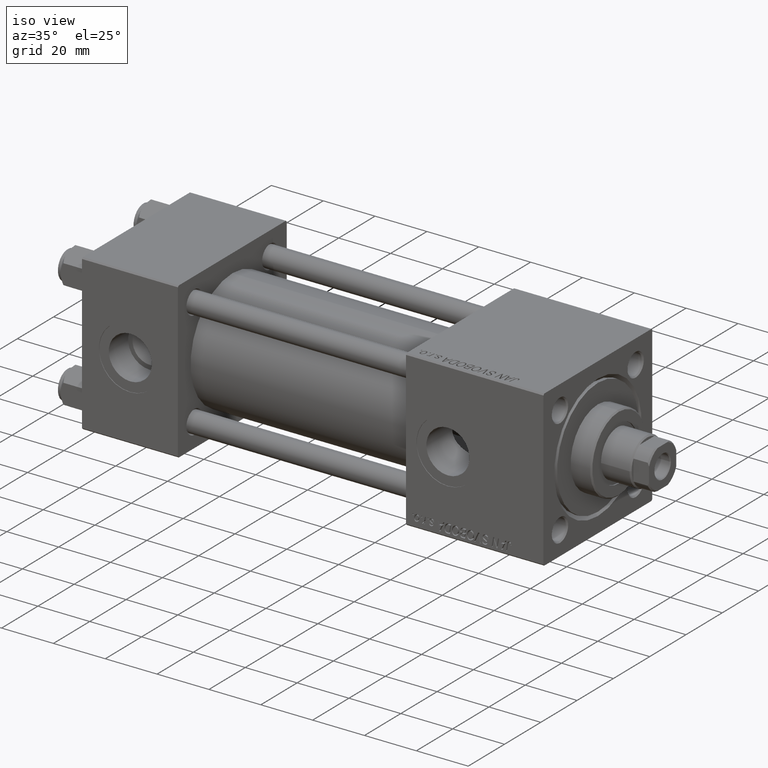
[diagram: clean part render]
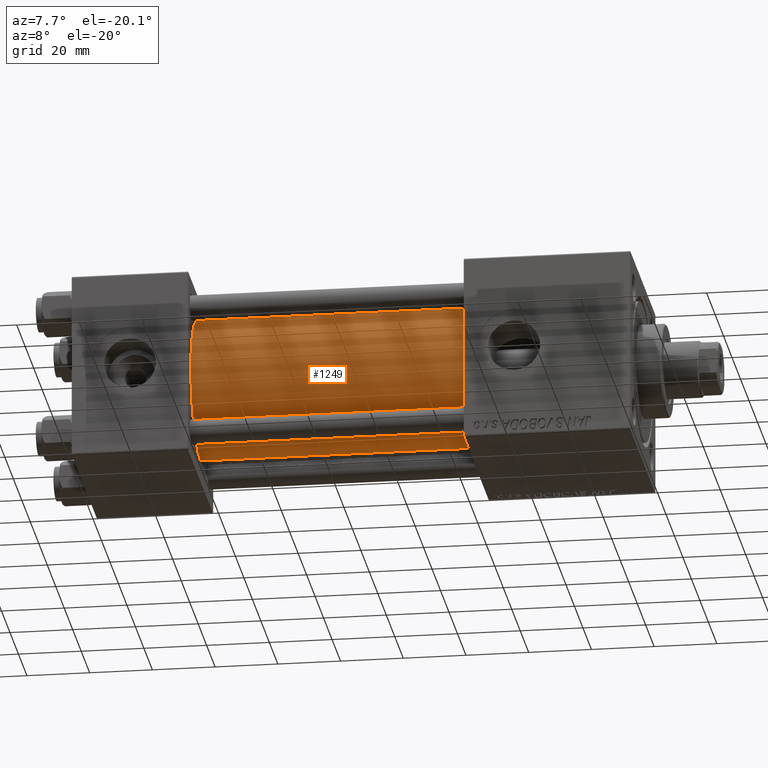
[diagram: tour spotlight — one face highlighted and labeled with its STEP entity id]
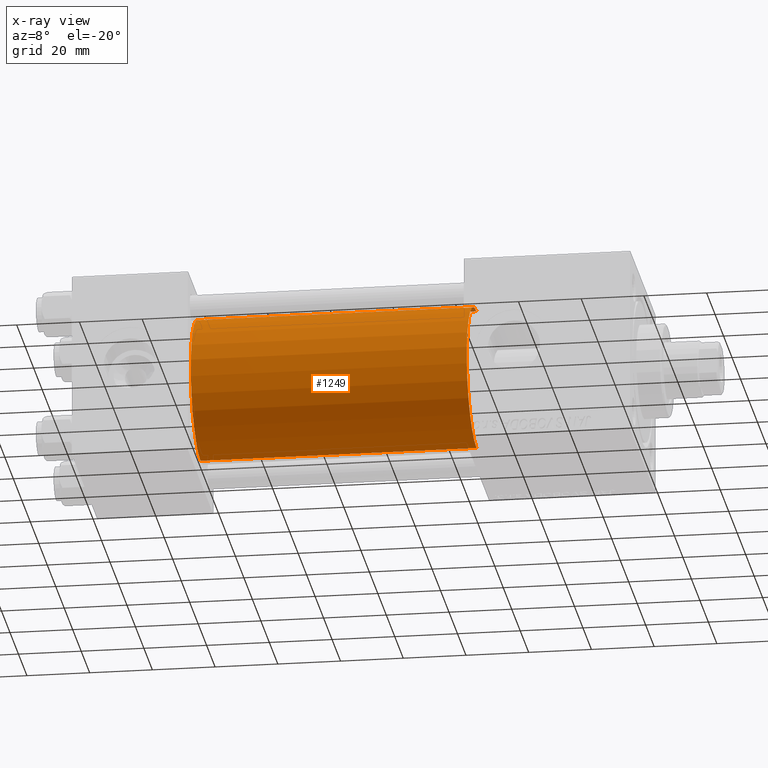
[diagram: x-ray of the same camera — body ghosted, this tour face saturated]
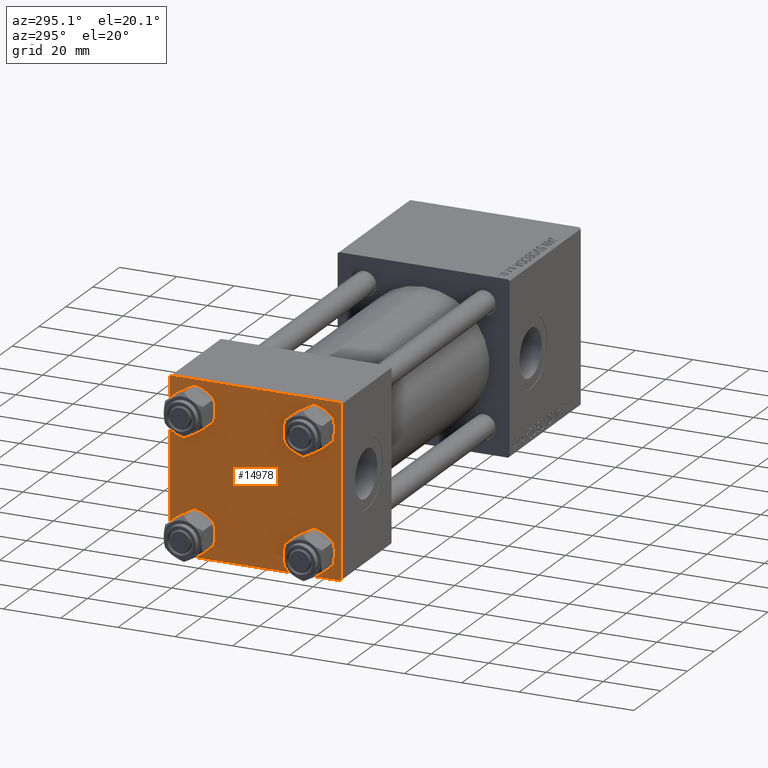
[diagram: tour spotlight — one face highlighted and labeled with its STEP entity id]
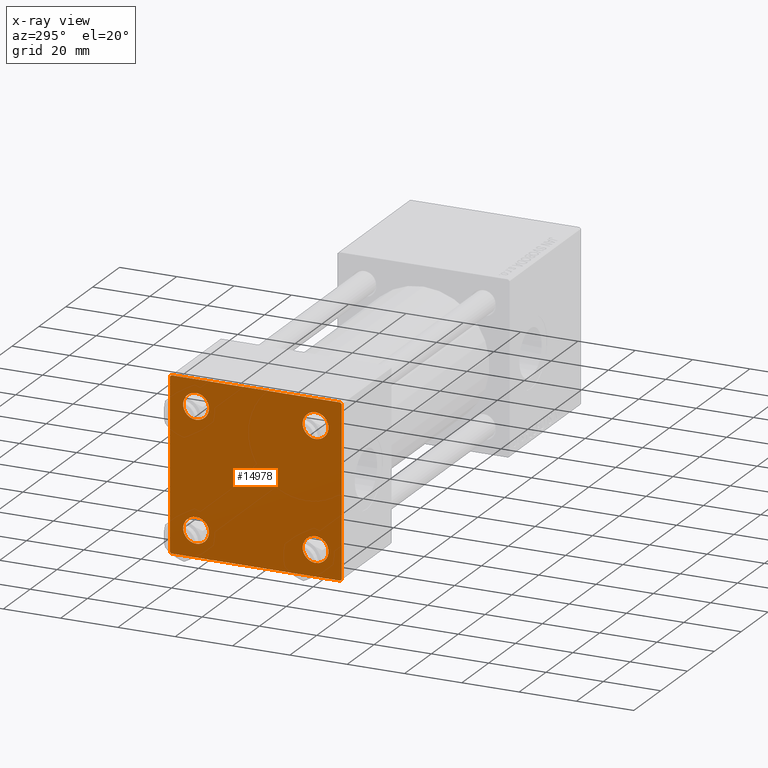
[diagram: x-ray of the same camera — body ghosted, this tour face saturated]
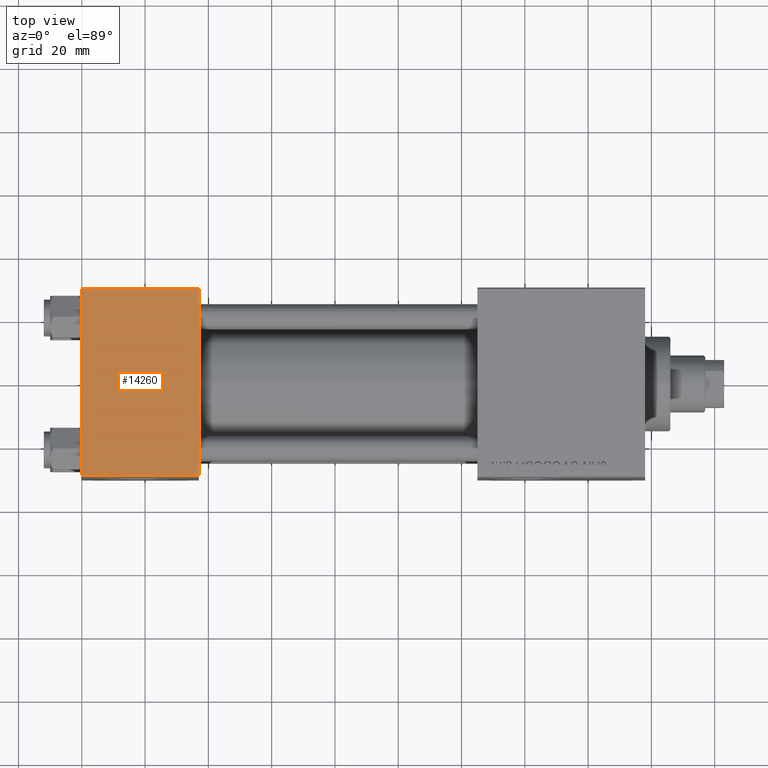
[diagram: tour spotlight — one face highlighted and labeled with its STEP entity id]
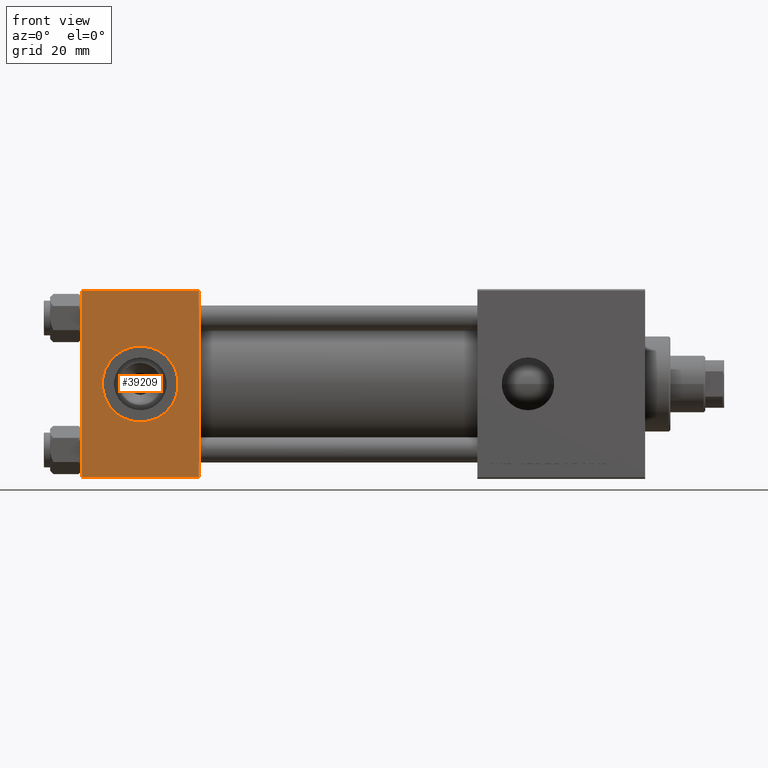
[diagram: tour spotlight — one face highlighted and labeled with its STEP entity id]
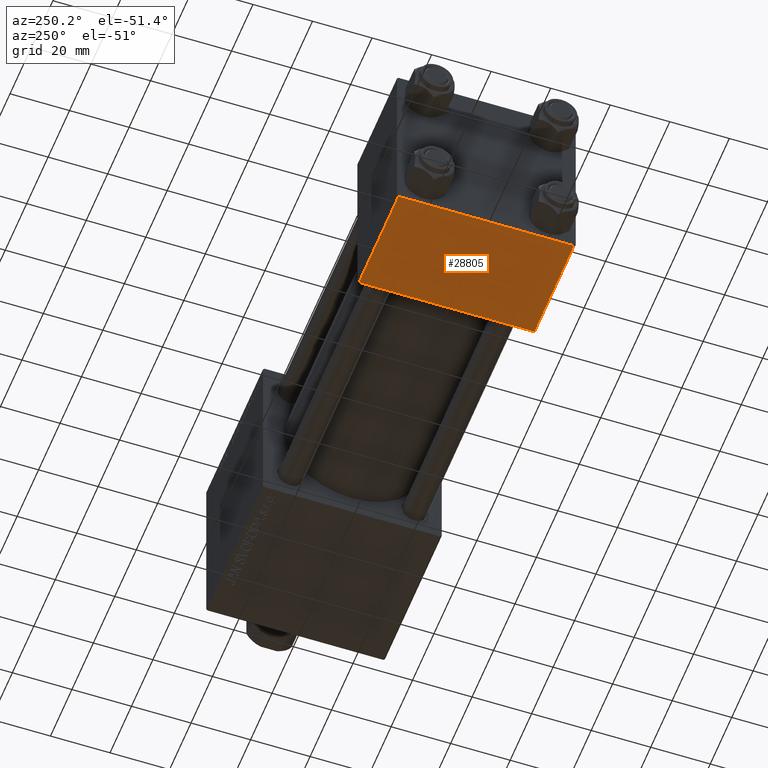
[diagram: tour spotlight — one face highlighted and labeled with its STEP entity id]
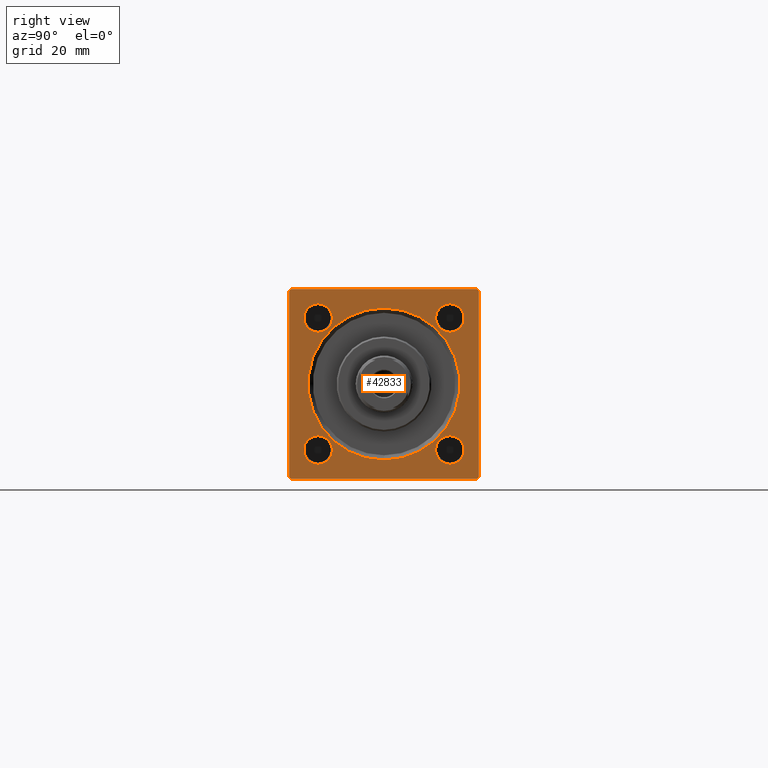
[diagram: tour spotlight — one face highlighted and labeled with its STEP entity id]
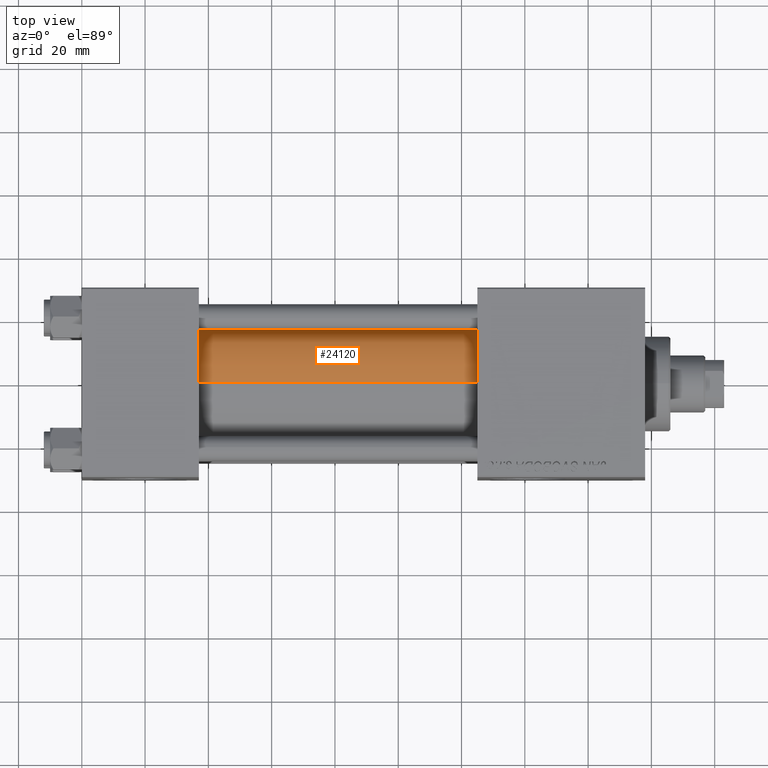
[diagram: tour spotlight — one face highlighted and labeled with its STEP entity id]
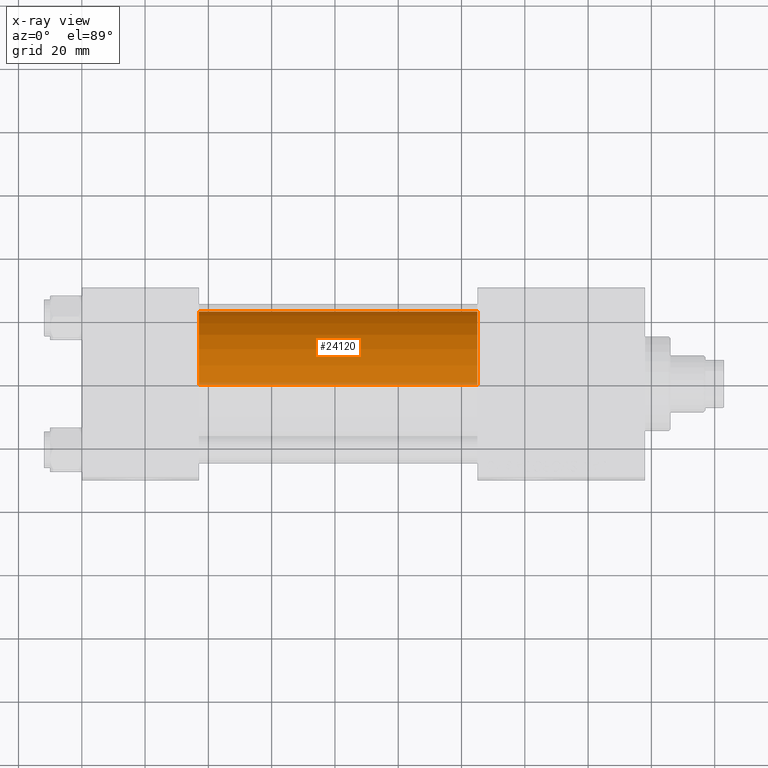
[diagram: x-ray of the same camera — body ghosted, this tour face saturated]
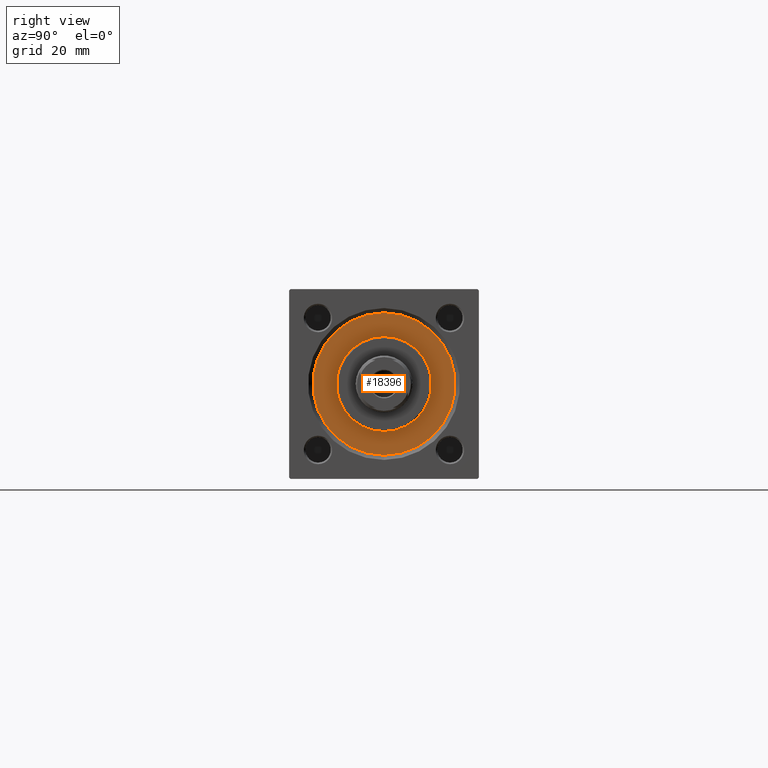
[diagram: tour spotlight — one face highlighted and labeled with its STEP entity id]
A machine part: a face-by-face anatomy tour. The part has 1149 B-rep faces; the first image is the clean iso view, then the 8 largest visible faces are spotlighted one at a time (largest first), each with its STEP entity span.

Face 1 — auxiliary view, entity #1249. An x-ray twin of the same camera follows (body ghosted, this face saturated) — the face is partly hidden behind the body. In plain terms, the highlighted cylindrical surface (partial cylindrical patch) has radius 23 mm, axis along (-1, -0, -0).
Definition (entity closure, byte-faithful):
#145 = DIRECTION ( 'NONE',  ( 0.000000000000000000, 0.000000000000000000, -1.000000000000000000 ) ) ;
#1249 = ADVANCED_FACE ( 'NONE', ( #13516 ), #48798, .T. ) ;
#2422 = ORIENTED_EDGE ( 'NONE', *, *, #13781, .F. ) ;
#4554 = CARTESIAN_POINT ( 'NONE',  ( 125.0000000000000000, -2.602085213965210642E-15, 23.00000000000000000 ) ) ;
#4766 = LINE ( 'NONE', #35991, #48747 ) ;
#5889 = DIRECTION ( 'NONE',  ( -1.000000000000000000, -0.000000000000000000, -0.000000000000000000 ) ) ;
#5941 = VERTEX_POINT ( 'NONE', #10081 ) ;
#7221 = CIRCLE ( 'NONE', #42881, 23.00000000000000000 ) ;
#7527 = ORIENTED_EDGE ( 'NONE', *, *, #40913, .T. ) ;
#7709 = LINE ( 'NONE', #15839, #38922 ) ;
#10081 = CARTESIAN_POINT ( 'NONE',  ( 37.00000000000000711, -2.602085213965210642E-15, 23.00000000000000000 ) ) ;
#12972 = AXIS2_PLACEMENT_3D ( 'NONE', #28986, #5889, #22378 ) ;
#13516 = FACE_OUTER_BOUND ( 'NONE', #47147, .T. ) ;
#13781 = EDGE_CURVE ( 'NONE', #39479, #43272, #7221, .T. ) ;
#14473 = ORIENTED_EDGE ( 'NONE', *, *, #18175, .F. ) ;
#15839 = CARTESIAN_POINT ( 'NONE',  ( 125.0000000000000000, 2.146024240737016609E-16, -23.00000000000000000 ) ) ;
#18158 = CARTESIAN_POINT ( 'NONE',  ( 37.00000000000000711, -2.602085213965210642E-15, 0.000000000000000000 ) ) ;
#18175 = EDGE_CURVE ( 'NONE', #43272, #39946, #7709, .T. ) ;
#19458 = DIRECTION ( 'NONE',  ( 1.000000000000000000, 0.000000000000000000, 0.000000000000000000 ) ) ;
#20085 = EDGE_CURVE ( 'NONE', #39479, #5941, #4766, .T. ) ;
#22378 = DIRECTION ( 'NONE',  ( 0.000000000000000000, 0.000000000000000000, 1.000000000000000000 ) ) ;
#26512 = DIRECTION ( 'NONE',  ( 0.000000000000000000, 0.000000000000000000, 1.000000000000000000 ) ) ;
#28689 = ORIENTED_EDGE ( 'NONE', *, *, #20085, .T. ) ;
#28986 = CARTESIAN_POINT ( 'NONE',  ( 125.0000000000000000, -2.602085213965210642E-15, 0.000000000000000000 ) ) ;
#30524 = CIRCLE ( 'NONE', #42678, 23.00000000000000000 ) ;
#34663 = CARTESIAN_POINT ( 'NONE',  ( 125.0000000000000000, -2.602085213965210642E-15, 0.000000000000000000 ) ) ;
#35991 = CARTESIAN_POINT ( 'NONE',  ( 125.0000000000000000, -2.602085213965210642E-15, 23.00000000000000000 ) ) ;
#37681 = DIRECTION ( 'NONE',  ( 1.000000000000000000, -0.000000000000000000, 0.000000000000000000 ) ) ;
#38665 = DIRECTION ( 'NONE',  ( -1.000000000000000000, -0.000000000000000000, -0.000000000000000000 ) ) ;
#38922 = VECTOR ( 'NONE', #38665, 1000.000000000000000 ) ;
#39479 = VERTEX_POINT ( 'NONE', #4554 ) ;
#39946 = VERTEX_POINT ( 'NONE', #43543 ) ;
#40311 = DIRECTION ( 'NONE',  ( -1.000000000000000000, -0.000000000000000000, -0.000000000000000000 ) ) ;
#40913 = EDGE_CURVE ( 'NONE', #5941, #39946, #30524, .T. ) ;
#42678 = AXIS2_PLACEMENT_3D ( 'NONE', #18158, #37681, #26512 ) ;
#42881 = AXIS2_PLACEMENT_3D ( 'NONE', #34663, #19458, #145 ) ;
#43272 = VERTEX_POINT ( 'NONE', #45101 ) ;
#43543 = CARTESIAN_POINT ( 'NONE',  ( 37.00000000000000711, 2.146024240737016609E-16, -23.00000000000000000 ) ) ;
#45101 = CARTESIAN_POINT ( 'NONE',  ( 125.0000000000000000, 2.146024240737016609E-16, -23.00000000000000000 ) ) ;
#47147 = EDGE_LOOP ( 'NONE', ( #14473, #2422, #28689, #7527 ) ) ;
#48747 = VECTOR ( 'NONE', #40311, 1000.000000000000000 ) ;
#48798 = CYLINDRICAL_SURFACE ( 'NONE', #12972, 23.00000000000000000 ) ;

Face 2 — auxiliary view, entity #14978. An x-ray twin of the same camera follows (body ghosted, this face saturated) — the face is partly hidden behind the body. In plain terms, the highlighted planar face has unit normal (-1, 0, 0).
Definition (entity closure, byte-faithful):
#377 = AXIS2_PLACEMENT_3D ( 'NONE', #37532, #34218, #14445 ) ;
#1414 = EDGE_LOOP ( 'NONE', ( #27362, #19089 ) ) ;
#1834 = EDGE_CURVE ( 'NONE', #11912, #5897, #46257, .T. ) ;
#2084 = VECTOR ( 'NONE', #6253, 1000.000000000000000 ) ;
#2155 = DIRECTION ( 'NONE',  ( -0.000000000000000000, 0.7071067811865474617, 0.7071067811865474617 ) ) ;
#2404 = LINE ( 'NONE', #44313, #30077 ) ;
#2703 = DIRECTION ( 'NONE',  ( 1.000000000000000000, -0.000000000000000000, 0.000000000000000000 ) ) ;
#2800 = EDGE_CURVE ( 'NONE', #11933, #34692, #2404, .T. ) ;
#2855 = DIRECTION ( 'NONE',  ( 0.000000000000000000, 0.000000000000000000, 1.000000000000000000 ) ) ;
#2868 = CARTESIAN_POINT ( 'NONE',  ( 0.000000000000000000, -20.84999999999999076, 25.35000000000002274 ) ) ;
#3872 = DIRECTION ( 'NONE',  ( 0.000000000000000000, -0.7071067811865474617, 0.7071067811865474617 ) ) ;
#4394 = EDGE_CURVE ( 'NONE', #14911, #20452, #12289, .T. ) ;
#4669 = LINE ( 'NONE', #32581, #46809 ) ;
#4719 = ORIENTED_EDGE ( 'NONE', *, *, #37540, .T. ) ;
#4901 = ORIENTED_EDGE ( 'NONE', *, *, #32525, .T. ) ;
#5075 = AXIS2_PLACEMENT_3D ( 'NONE', #15669, #35181, #23263 ) ;
#5142 = ORIENTED_EDGE ( 'NONE', *, *, #27975, .T. ) ;
#5897 = VERTEX_POINT ( 'NONE', #30921 ) ;
#6253 = DIRECTION ( 'NONE',  ( 0.000000000000000000, 0.000000000000000000, -1.000000000000000000 ) ) ;
#6412 = CIRCLE ( 'NONE', #19407, 4.500000000000017764 ) ;
#6623 = VECTOR ( 'NONE', #3872, 1000.000000000000114 ) ;
#6877 = DIRECTION ( 'NONE',  ( 0.000000000000000000, 0.000000000000000000, 1.000000000000000000 ) ) ;
#7111 = ORIENTED_EDGE ( 'NONE', *, *, #19341, .T. ) ;
#7205 = CARTESIAN_POINT ( 'NONE',  ( 0.000000000000000000, 0.000000000000000000, 0.000000000000000000 ) ) ;
#7300 = VERTEX_POINT ( 'NONE', #35818 ) ;
#7419 = CARTESIAN_POINT ( 'NONE',  ( 0.000000000000000000, -20.84999999999999076, 20.85000000000000497 ) ) ;
#8327 = CIRCLE ( 'NONE', #5075, 4.500000000000017764 ) ;
#8551 = EDGE_CURVE ( 'NONE', #10797, #37380, #29024, .T. ) ;
#9298 = CIRCLE ( 'NONE', #377, 4.500000000000017764 ) ;
#9565 = LINE ( 'NONE', #17699, #2084 ) ;
#10234 = EDGE_LOOP ( 'NONE', ( #31838, #40322 ) ) ;
#10420 = CARTESIAN_POINT ( 'NONE',  ( 0.000000000000000000, 20.84999999999999787, -25.35000000000001918 ) ) ;
#10739 = CARTESIAN_POINT ( 'NONE',  ( 0.000000000000000000, -20.84999999999999076, -16.34999999999998721 ) ) ;
#10771 = EDGE_CURVE ( 'NONE', #37380, #10797, #6412, .T. ) ;
#10797 = VERTEX_POINT ( 'NONE', #15564 ) ;
#11297 = EDGE_LOOP ( 'NONE', ( #4719, #5142 ) ) ;
#11304 = AXIS2_PLACEMENT_3D ( 'NONE', #7205, #30539, #18884 ) ;
#11899 = VERTEX_POINT ( 'NONE', #10739 ) ;
#11912 = VERTEX_POINT ( 'NONE', #2868 ) ;
#11933 = VERTEX_POINT ( 'NONE', #38654 ) ;
#12289 = CIRCLE ( 'NONE', #15531, 4.500000000000017764 ) ;
#12516 = VERTEX_POINT ( 'NONE', #31476 ) ;
#12528 = ORIENTED_EDGE ( 'NONE', *, *, #2800, .T. ) ;
#12532 = DIRECTION ( 'NONE',  ( 0.000000000000000000, -1.000000000000000000, -1.156482317317871725E-16 ) ) ;
#13542 = LINE ( 'NONE', #44258, #44164 ) ;
#14001 = VERTEX_POINT ( 'NONE', #28307 ) ;
#14172 = ORIENTED_EDGE ( 'NONE', *, *, #46671, .F. ) ;
#14445 = DIRECTION ( 'NONE',  ( 0.000000000000000000, 0.000000000000000000, 1.000000000000000000 ) ) ;
#14911 = VERTEX_POINT ( 'NONE', #29048 ) ;
#14978 = ADVANCED_FACE ( 'NONE', ( #38662, #30046, #38414, #50096, #41983 ), #49595, .T. ) ;
#15531 = AXIS2_PLACEMENT_3D ( 'NONE', #22116, #23117, #6877 ) ;
#15564 = CARTESIAN_POINT ( 'NONE',  ( 0.000000000000000000, 20.84999999999999787, 16.34999999999998366 ) ) ;
#15669 = CARTESIAN_POINT ( 'NONE',  ( 0.000000000000000000, -20.84999999999999076, -20.85000000000000497 ) ) ;
#16881 = DIRECTION ( 'NONE',  ( 0.000000000000000000, -1.000000000000000000, -1.156482317317871725E-16 ) ) ;
#17173 = EDGE_CURVE ( 'NONE', #5897, #11912, #50259, .T. ) ;
#17397 = EDGE_CURVE ( 'NONE', #12516, #36867, #31036, .T. ) ;
#17699 = CARTESIAN_POINT ( 'NONE',  ( 0.000000000000000000, -30.00000000000000000, 29.99999999999999289 ) ) ;
#18884 = DIRECTION ( 'NONE',  ( -0.000000000000000000, 0.000000000000000000, 1.000000000000000000 ) ) ;
#18961 = LINE ( 'NONE', #46117, #20340 ) ;
#19089 = ORIENTED_EDGE ( 'NONE', *, *, #17173, .T. ) ;
#19133 = CARTESIAN_POINT ( 'NONE',  ( 0.000000000000000000, -29.75000000000001066, -29.75000000000001066 ) ) ;
#19341 = EDGE_CURVE ( 'NONE', #30443, #7300, #18961, .T. ) ;
#19407 = AXIS2_PLACEMENT_3D ( 'NONE', #33829, #49329, #2855 ) ;
#19461 = DIRECTION ( 'NONE',  ( -0.000000000000000000, -0.7071067811865574537, -0.7071067811865376918 ) ) ;
#20340 = VECTOR ( 'NONE', #19461, 999.9999999999998863 ) ;
#20452 = VERTEX_POINT ( 'NONE', #10420 ) ;
#20484 = CARTESIAN_POINT ( 'NONE',  ( 0.000000000000000000, 29.99999999999999289, -29.50000000000000000 ) ) ;
#20618 = ORIENTED_EDGE ( 'NONE', *, *, #17397, .T. ) ;
#20870 = EDGE_CURVE ( 'NONE', #20452, #14911, #34990, .T. ) ;
#21463 = EDGE_CURVE ( 'NONE', #32363, #14001, #50093, .T. ) ;
#21553 = CARTESIAN_POINT ( 'NONE',  ( 0.000000000000000000, 20.84999999999999787, 20.85000000000000142 ) ) ;
#22116 = CARTESIAN_POINT ( 'NONE',  ( 0.000000000000000000, 20.84999999999999787, -20.85000000000000142 ) ) ;
#22389 = CARTESIAN_POINT ( 'NONE',  ( 0.000000000000000000, 20.84999999999999787, 25.35000000000001918 ) ) ;
#23117 = DIRECTION ( 'NONE',  ( 1.000000000000000000, -0.000000000000000000, 0.000000000000000000 ) ) ;
#23263 = DIRECTION ( 'NONE',  ( 0.000000000000000000, 0.000000000000000000, 1.000000000000000000 ) ) ;
#23345 = AXIS2_PLACEMENT_3D ( 'NONE', #21553, #49204, #30158 ) ;
#23904 = VERTEX_POINT ( 'NONE', #31105 ) ;
#24340 = CARTESIAN_POINT ( 'NONE',  ( 0.000000000000000000, -29.49999999999998579, 29.99999999999999289 ) ) ;
#25053 = CARTESIAN_POINT ( 'NONE',  ( 0.000000000000000000, 29.99999999999999289, 30.00000000000000000 ) ) ;
#26199 = DIRECTION ( 'NONE',  ( 1.000000000000000000, -0.000000000000000000, 0.000000000000000000 ) ) ;
#27362 = ORIENTED_EDGE ( 'NONE', *, *, #1834, .T. ) ;
#27975 = EDGE_CURVE ( 'NONE', #23904, #11899, #8327, .T. ) ;
#28307 = CARTESIAN_POINT ( 'NONE',  ( 0.000000000000000000, -30.00000000000000000, -29.50000000000001776 ) ) ;
#29024 = CIRCLE ( 'NONE', #23345, 4.500000000000017764 ) ;
#29048 = CARTESIAN_POINT ( 'NONE',  ( 0.000000000000000000, 20.84999999999999787, -16.34999999999998366 ) ) ;
#29432 = CARTESIAN_POINT ( 'NONE',  ( 0.000000000000000000, 29.99999999999999289, 29.50000000000000000 ) ) ;
#30046 = FACE_BOUND ( 'NONE', #11297, .T. ) ;
#30077 = VECTOR ( 'NONE', #2155, 1000.000000000000114 ) ;
#30158 = DIRECTION ( 'NONE',  ( 0.000000000000000000, 0.000000000000000000, 1.000000000000000000 ) ) ;
#30443 = VERTEX_POINT ( 'NONE', #20484 ) ;
#30539 = DIRECTION ( 'NONE',  ( -1.000000000000000000, 0.000000000000000000, -0.000000000000000000 ) ) ;
#30558 = VECTOR ( 'NONE', #44344, 1000.000000000000000 ) ;
#30789 = CARTESIAN_POINT ( 'NONE',  ( 0.000000000000000000, 29.74999999999999645, 29.74999999999999645 ) ) ;
#30921 = CARTESIAN_POINT ( 'NONE',  ( 0.000000000000000000, -20.84999999999999076, 16.34999999999998721 ) ) ;
#31036 = LINE ( 'NONE', #30789, #40519 ) ;
#31105 = CARTESIAN_POINT ( 'NONE',  ( 0.000000000000000000, -20.84999999999999076, -25.35000000000002274 ) ) ;
#31401 = DIRECTION ( 'NONE',  ( 0.000000000000000000, 0.000000000000000000, 1.000000000000000000 ) ) ;
#31476 = CARTESIAN_POINT ( 'NONE',  ( 0.000000000000000000, 29.49999999999999289, 30.00000000000000000 ) ) ;
#31838 = ORIENTED_EDGE ( 'NONE', *, *, #10771, .T. ) ;
#32363 = VERTEX_POINT ( 'NONE', #34879 ) ;
#32437 = ORIENTED_EDGE ( 'NONE', *, *, #38933, .F. ) ;
#32525 = EDGE_CURVE ( 'NONE', #7300, #32363, #13542, .T. ) ;
#32581 = CARTESIAN_POINT ( 'NONE',  ( 0.000000000000000000, 29.99999999999999289, 30.00000000000000000 ) ) ;
#33155 = LINE ( 'NONE', #25053, #30558 ) ;
#33674 = CARTESIAN_POINT ( 'NONE',  ( 0.000000000000000000, -20.84999999999999076, 20.85000000000000497 ) ) ;
#33829 = CARTESIAN_POINT ( 'NONE',  ( 0.000000000000000000, 20.84999999999999787, 20.85000000000000142 ) ) ;
#34218 = DIRECTION ( 'NONE',  ( 1.000000000000000000, -0.000000000000000000, 0.000000000000000000 ) ) ;
#34358 = ORIENTED_EDGE ( 'NONE', *, *, #21463, .T. ) ;
#34422 = DIRECTION ( 'NONE',  ( 0.000000000000000000, 0.000000000000000000, 1.000000000000000000 ) ) ;
#34692 = VERTEX_POINT ( 'NONE', #24340 ) ;
#34879 = CARTESIAN_POINT ( 'NONE',  ( 0.000000000000000000, -29.50000000000000000, -30.00000000000000711 ) ) ;
#34990 = CIRCLE ( 'NONE', #38222, 4.500000000000017764 ) ;
#35181 = DIRECTION ( 'NONE',  ( 1.000000000000000000, -0.000000000000000000, 0.000000000000000000 ) ) ;
#35818 = CARTESIAN_POINT ( 'NONE',  ( 0.000000000000000000, 29.49999999999997868, -30.00000000000000000 ) ) ;
#35850 = ORIENTED_EDGE ( 'NONE', *, *, #4394, .T. ) ;
#36867 = VERTEX_POINT ( 'NONE', #29432 ) ;
#37380 = VERTEX_POINT ( 'NONE', #22389 ) ;
#37532 = CARTESIAN_POINT ( 'NONE',  ( 0.000000000000000000, -20.84999999999999076, -20.85000000000000497 ) ) ;
#37540 = EDGE_CURVE ( 'NONE', #11899, #23904, #9298, .T. ) ;
#38207 = ORIENTED_EDGE ( 'NONE', *, *, #20870, .T. ) ;
#38222 = AXIS2_PLACEMENT_3D ( 'NONE', #46156, #50207, #31401 ) ;
#38414 = FACE_BOUND ( 'NONE', #49596, .T. ) ;
#38654 = CARTESIAN_POINT ( 'NONE',  ( 0.000000000000000000, -30.00000000000000000, 29.49999999999999289 ) ) ;
#38662 = FACE_BOUND ( 'NONE', #1414, .T. ) ;
#38933 = EDGE_CURVE ( 'NONE', #11933, #14001, #9565, .T. ) ;
#38961 = AXIS2_PLACEMENT_3D ( 'NONE', #33674, #2703, #34422 ) ;
#40322 = ORIENTED_EDGE ( 'NONE', *, *, #8551, .T. ) ;
#40519 = VECTOR ( 'NONE', #47293, 1000.000000000000114 ) ;
#41983 = FACE_OUTER_BOUND ( 'NONE', #42563, .T. ) ;
#42441 = DIRECTION ( 'NONE',  ( 0.000000000000000000, 0.000000000000000000, 1.000000000000000000 ) ) ;
#42563 = EDGE_LOOP ( 'NONE', ( #46453, #7111, #4901, #34358, #32437, #12528, #14172, #20618 ) ) ;
#44164 = VECTOR ( 'NONE', #12532, 1000.000000000000000 ) ;
#44258 = CARTESIAN_POINT ( 'NONE',  ( 0.000000000000000000, 29.99999999999999289, -30.00000000000000000 ) ) ;
#44313 = CARTESIAN_POINT ( 'NONE',  ( -0.000000000000000000, -29.74999999999999645, 29.74999999999999645 ) ) ;
#44344 = DIRECTION ( 'NONE',  ( 0.000000000000000000, 0.000000000000000000, -1.000000000000000000 ) ) ;
#46117 = CARTESIAN_POINT ( 'NONE',  ( 0.000000000000000000, 29.74999999999957723, -29.75000000000040501 ) ) ;
#46156 = CARTESIAN_POINT ( 'NONE',  ( 0.000000000000000000, 20.84999999999999787, -20.85000000000000142 ) ) ;
#46257 = CIRCLE ( 'NONE', #38961, 4.500000000000017764 ) ;
#46453 = ORIENTED_EDGE ( 'NONE', *, *, #47188, .T. ) ;
#46671 = EDGE_CURVE ( 'NONE', #12516, #34692, #4669, .T. ) ;
#46809 = VECTOR ( 'NONE', #16881, 1000.000000000000000 ) ;
#47188 = EDGE_CURVE ( 'NONE', #36867, #30443, #33155, .T. ) ;
#47293 = DIRECTION ( 'NONE',  ( 0.000000000000000000, 0.7071067811865474617, -0.7071067811865474617 ) ) ;
#47805 = AXIS2_PLACEMENT_3D ( 'NONE', #7419, #26199, #42441 ) ;
#49204 = DIRECTION ( 'NONE',  ( 1.000000000000000000, -0.000000000000000000, 0.000000000000000000 ) ) ;
#49329 = DIRECTION ( 'NONE',  ( 1.000000000000000000, -0.000000000000000000, 0.000000000000000000 ) ) ;
#49595 = PLANE ( 'NONE',  #11304 ) ;
#49596 = EDGE_LOOP ( 'NONE', ( #35850, #38207 ) ) ;
#50093 = LINE ( 'NONE', #19133, #6623 ) ;
#50096 = FACE_BOUND ( 'NONE', #10234, .T. ) ;
#50207 = DIRECTION ( 'NONE',  ( 1.000000000000000000, -0.000000000000000000, 0.000000000000000000 ) ) ;
#50259 = CIRCLE ( 'NONE', #47805, 4.500000000000017764 ) ;

Face 3 — top view, entity #14260. In plain terms, the highlighted planar face has unit normal (0, 0, -1).
Definition (entity closure, byte-faithful):
#586 = CARTESIAN_POINT ( 'NONE',  ( 37.00000000000000000, 29.99999999999999289, 30.00000000000000000 ) ) ;
#4669 = LINE ( 'NONE', #32581, #46809 ) ;
#5505 = ORIENTED_EDGE ( 'NONE', *, *, #44389, .F. ) ;
#7619 = EDGE_LOOP ( 'NONE', ( #42920, #37956, #5505, #46144 ) ) ;
#7887 = VECTOR ( 'NONE', #50105, 1000.000000000000000 ) ;
#8257 = LINE ( 'NONE', #19939, #12788 ) ;
#10464 = VECTOR ( 'NONE', #32530, 1000.000000000000000 ) ;
#11726 = EDGE_CURVE ( 'NONE', #34692, #38705, #8257, .T. ) ;
#12516 = VERTEX_POINT ( 'NONE', #31476 ) ;
#12788 = VECTOR ( 'NONE', #20186, 1000.000000000000000 ) ;
#14260 = ADVANCED_FACE ( 'NONE', ( #47317 ), #31811, .F. ) ;
#15143 = EDGE_CURVE ( 'NONE', #48507, #12516, #25676, .T. ) ;
#16881 = DIRECTION ( 'NONE',  ( 0.000000000000000000, -1.000000000000000000, -1.156482317317871725E-16 ) ) ;
#19939 = CARTESIAN_POINT ( 'NONE',  ( 37.00000000000000000, -29.50000000000000000, 29.99999999999999289 ) ) ;
#20186 = DIRECTION ( 'NONE',  ( 1.000000000000000000, 0.000000000000000000, 0.000000000000000000 ) ) ;
#22698 = LINE ( 'NONE', #46052, #7887 ) ;
#24340 = CARTESIAN_POINT ( 'NONE',  ( 0.000000000000000000, -29.49999999999998579, 29.99999999999999289 ) ) ;
#25676 = LINE ( 'NONE', #32779, #10464 ) ;
#28244 = DIRECTION ( 'NONE',  ( 0.000000000000000000, 1.000000000000000000, 1.156482317317871725E-16 ) ) ;
#29096 = AXIS2_PLACEMENT_3D ( 'NONE', #586, #32055, #28244 ) ;
#31476 = CARTESIAN_POINT ( 'NONE',  ( 0.000000000000000000, 29.49999999999999289, 30.00000000000000000 ) ) ;
#31767 = CARTESIAN_POINT ( 'NONE',  ( 37.00000000000000000, 29.49999999999999289, 30.00000000000000000 ) ) ;
#31811 = PLANE ( 'NONE',  #29096 ) ;
#32055 = DIRECTION ( 'NONE',  ( 0.000000000000000000, 1.156482317317871725E-16, -1.000000000000000000 ) ) ;
#32530 = DIRECTION ( 'NONE',  ( -1.000000000000000000, 0.000000000000000000, 0.000000000000000000 ) ) ;
#32581 = CARTESIAN_POINT ( 'NONE',  ( 0.000000000000000000, 29.99999999999999289, 30.00000000000000000 ) ) ;
#32779 = CARTESIAN_POINT ( 'NONE',  ( 0.000000000000000000, 29.49999999999999289, 30.00000000000000000 ) ) ;
#33470 = CARTESIAN_POINT ( 'NONE',  ( 37.00000000000000000, -29.49999999999998579, 29.99999999999999289 ) ) ;
#34692 = VERTEX_POINT ( 'NONE', #24340 ) ;
#37956 = ORIENTED_EDGE ( 'NONE', *, *, #11726, .T. ) ;
#38705 = VERTEX_POINT ( 'NONE', #33470 ) ;
#42920 = ORIENTED_EDGE ( 'NONE', *, *, #46671, .T. ) ;
#44389 = EDGE_CURVE ( 'NONE', #48507, #38705, #22698, .T. ) ;
#46052 = CARTESIAN_POINT ( 'NONE',  ( 37.00000000000000000, 29.99999999999999289, 30.00000000000000000 ) ) ;
#46144 = ORIENTED_EDGE ( 'NONE', *, *, #15143, .T. ) ;
#46671 = EDGE_CURVE ( 'NONE', #12516, #34692, #4669, .T. ) ;
#46809 = VECTOR ( 'NONE', #16881, 1000.000000000000000 ) ;
#47317 = FACE_OUTER_BOUND ( 'NONE', #7619, .T. ) ;
#48507 = VERTEX_POINT ( 'NONE', #31767 ) ;
#50105 = DIRECTION ( 'NONE',  ( 0.000000000000000000, -1.000000000000000000, -1.156482317317871725E-16 ) ) ;

Face 4 — front view, entity #39209. In plain terms, the highlighted planar face has unit normal (0, 1, 0).
Definition (entity closure, byte-faithful):
#743 = DIRECTION ( 'NONE',  ( 0.000000000000000000, -1.000000000000000000, -8.673617379884036705E-17 ) ) ;
#2084 = VECTOR ( 'NONE', #6253, 1000.000000000000000 ) ;
#2257 = VECTOR ( 'NONE', #36708, 1000.000000000000000 ) ;
#2763 = CARTESIAN_POINT ( 'NONE',  ( 18.50000000000000000, -30.00000000000000000, 12.00000000000000178 ) ) ;
#3805 = FACE_BOUND ( 'NONE', #11149, .T. ) ;
#4057 = PLANE ( 'NONE',  #5289 ) ;
#5289 = AXIS2_PLACEMENT_3D ( 'NONE', #10931, #14761, #42165 ) ;
#5679 = ORIENTED_EDGE ( 'NONE', *, *, #37869, .F. ) ;
#5735 = LINE ( 'NONE', #47634, #2257 ) ;
#6253 = DIRECTION ( 'NONE',  ( 0.000000000000000000, 0.000000000000000000, -1.000000000000000000 ) ) ;
#7080 = VECTOR ( 'NONE', #43318, 1000.000000000000000 ) ;
#7161 = DIRECTION ( 'NONE',  ( 0.000000000000000000, 0.000000000000000000, -1.000000000000000000 ) ) ;
#7397 = CARTESIAN_POINT ( 'NONE',  ( 37.00000000000000000, -30.00000000000000000, 29.49999999999999289 ) ) ;
#9565 = LINE ( 'NONE', #17699, #2084 ) ;
#10052 = DIRECTION ( 'NONE',  ( 0.000000000000000000, 0.000000000000000000, -1.000000000000000000 ) ) ;
#10382 = EDGE_CURVE ( 'NONE', #29922, #26817, #34745, .T. ) ;
#10707 = LINE ( 'NONE', #46254, #19433 ) ;
#10789 = CARTESIAN_POINT ( 'NONE',  ( 18.50000000000000000, -30.00000000000000000, 0.000000000000000000 ) ) ;
#10931 = CARTESIAN_POINT ( 'NONE',  ( 37.00000000000000000, -30.00000000000000000, 29.99999999999999289 ) ) ;
#11149 = EDGE_LOOP ( 'NONE', ( #48933, #5679 ) ) ;
#11933 = VERTEX_POINT ( 'NONE', #38654 ) ;
#12431 = ORIENTED_EDGE ( 'NONE', *, *, #48934, .T. ) ;
#13165 = VERTEX_POINT ( 'NONE', #7397 ) ;
#14001 = VERTEX_POINT ( 'NONE', #28307 ) ;
#14761 = DIRECTION ( 'NONE',  ( -0.000000000000000000, 1.000000000000000000, 0.000000000000000000 ) ) ;
#16124 = AXIS2_PLACEMENT_3D ( 'NONE', #10789, #25783, #10052 ) ;
#16261 = DIRECTION ( 'NONE',  ( 0.000000000000000000, 0.000000000000000000, -1.000000000000000000 ) ) ;
#17170 = EDGE_CURVE ( 'NONE', #13165, #26937, #10707, .T. ) ;
#17699 = CARTESIAN_POINT ( 'NONE',  ( 0.000000000000000000, -30.00000000000000000, 29.99999999999999289 ) ) ;
#19433 = VECTOR ( 'NONE', #7161, 1000.000000000000000 ) ;
#23186 = EDGE_LOOP ( 'NONE', ( #38442, #29840, #38235, #12431 ) ) ;
#23955 = CIRCLE ( 'NONE', #46630, 12.00000000000000178 ) ;
#24028 = CARTESIAN_POINT ( 'NONE',  ( 37.00000000000000000, -30.00000000000000000, -29.50000000000001776 ) ) ;
#25783 = DIRECTION ( 'NONE',  ( 0.000000000000000000, -1.000000000000000000, -8.673617379884036705E-17 ) ) ;
#26817 = VERTEX_POINT ( 'NONE', #2763 ) ;
#26937 = VERTEX_POINT ( 'NONE', #45927 ) ;
#28307 = CARTESIAN_POINT ( 'NONE',  ( 0.000000000000000000, -30.00000000000000000, -29.50000000000001776 ) ) ;
#29840 = ORIENTED_EDGE ( 'NONE', *, *, #47726, .T. ) ;
#29922 = VERTEX_POINT ( 'NONE', #32244 ) ;
#32244 = CARTESIAN_POINT ( 'NONE',  ( 18.50000000000000000, -30.00000000000000000, -12.00000000000000178 ) ) ;
#34745 = CIRCLE ( 'NONE', #16124, 12.00000000000000178 ) ;
#36708 = DIRECTION ( 'NONE',  ( -1.000000000000000000, 0.000000000000000000, 0.000000000000000000 ) ) ;
#37869 = EDGE_CURVE ( 'NONE', #26817, #29922, #23955, .T. ) ;
#38235 = ORIENTED_EDGE ( 'NONE', *, *, #17170, .F. ) ;
#38442 = ORIENTED_EDGE ( 'NONE', *, *, #38933, .T. ) ;
#38654 = CARTESIAN_POINT ( 'NONE',  ( 0.000000000000000000, -30.00000000000000000, 29.49999999999999289 ) ) ;
#38851 = FACE_OUTER_BOUND ( 'NONE', #23186, .T. ) ;
#38933 = EDGE_CURVE ( 'NONE', #11933, #14001, #9565, .T. ) ;
#39209 = ADVANCED_FACE ( 'NONE', ( #3805, #38851 ), #4057, .F. ) ;
#39328 = CARTESIAN_POINT ( 'NONE',  ( 18.50000000000000000, -30.00000000000000000, 0.000000000000000000 ) ) ;
#42165 = DIRECTION ( 'NONE',  ( 0.000000000000000000, -0.000000000000000000, 1.000000000000000000 ) ) ;
#43318 = DIRECTION ( 'NONE',  ( 1.000000000000000000, 0.000000000000000000, 0.000000000000000000 ) ) ;
#45927 = CARTESIAN_POINT ( 'NONE',  ( 37.00000000000000000, -30.00000000000000000, -29.50000000000001776 ) ) ;
#46254 = CARTESIAN_POINT ( 'NONE',  ( 37.00000000000000000, -30.00000000000000000, 29.99999999999999289 ) ) ;
#46630 = AXIS2_PLACEMENT_3D ( 'NONE', #39328, #743, #16261 ) ;
#47137 = LINE ( 'NONE', #24028, #7080 ) ;
#47634 = CARTESIAN_POINT ( 'NONE',  ( 37.00000000000000000, -30.00000000000000000, 29.49999999999999289 ) ) ;
#47726 = EDGE_CURVE ( 'NONE', #14001, #26937, #47137, .T. ) ;
#48933 = ORIENTED_EDGE ( 'NONE', *, *, #10382, .F. ) ;
#48934 = EDGE_CURVE ( 'NONE', #13165, #11933, #5735, .T. ) ;

Face 5 — auxiliary view, entity #28805. In plain terms, the highlighted planar face has unit normal (0, 0, -1).
Definition (entity closure, byte-faithful):
#927 = VERTEX_POINT ( 'NONE', #18639 ) ;
#1220 = DIRECTION ( 'NONE',  ( 1.000000000000000000, 0.000000000000000000, 0.000000000000000000 ) ) ;
#1775 = DIRECTION ( 'NONE',  ( 0.000000000000000000, -1.000000000000000000, -1.156482317317871725E-16 ) ) ;
#2176 = EDGE_CURVE ( 'NONE', #12660, #927, #2275, .T. ) ;
#2275 = LINE ( 'NONE', #17536, #17097 ) ;
#7300 = VERTEX_POINT ( 'NONE', #35818 ) ;
#7804 = ORIENTED_EDGE ( 'NONE', *, *, #11846, .T. ) ;
#9358 = LINE ( 'NONE', #44134, #12808 ) ;
#11846 = EDGE_CURVE ( 'NONE', #927, #32363, #21676, .T. ) ;
#12532 = DIRECTION ( 'NONE',  ( 0.000000000000000000, -1.000000000000000000, -1.156482317317871725E-16 ) ) ;
#12660 = VERTEX_POINT ( 'NONE', #15705 ) ;
#12808 = VECTOR ( 'NONE', #1220, 1000.000000000000000 ) ;
#13542 = LINE ( 'NONE', #44258, #44164 ) ;
#15705 = CARTESIAN_POINT ( 'NONE',  ( 37.00000000000000000, 29.49999999999997868, -30.00000000000000000 ) ) ;
#17097 = VECTOR ( 'NONE', #1775, 1000.000000000000000 ) ;
#17536 = CARTESIAN_POINT ( 'NONE',  ( 37.00000000000000000, 29.99999999999999289, -30.00000000000000000 ) ) ;
#18489 = VECTOR ( 'NONE', #37156, 1000.000000000000000 ) ;
#18639 = CARTESIAN_POINT ( 'NONE',  ( 37.00000000000000000, -29.50000000000000000, -30.00000000000000711 ) ) ;
#18851 = FACE_OUTER_BOUND ( 'NONE', #49007, .T. ) ;
#19603 = DIRECTION ( 'NONE',  ( 0.000000000000000000, 1.000000000000000000, 1.156482317317871725E-16 ) ) ;
#21676 = LINE ( 'NONE', #26480, #18489 ) ;
#23349 = ORIENTED_EDGE ( 'NONE', *, *, #32525, .F. ) ;
#24200 = ORIENTED_EDGE ( 'NONE', *, *, #45454, .T. ) ;
#26480 = CARTESIAN_POINT ( 'NONE',  ( 0.000000000000000000, -29.50000000000001066, -30.00000000000000711 ) ) ;
#28805 = ADVANCED_FACE ( 'NONE', ( #18851 ), #34313, .T. ) ;
#31008 = CARTESIAN_POINT ( 'NONE',  ( 37.00000000000000000, 29.99999999999999289, -30.00000000000000000 ) ) ;
#32363 = VERTEX_POINT ( 'NONE', #34879 ) ;
#32525 = EDGE_CURVE ( 'NONE', #7300, #32363, #13542, .T. ) ;
#34313 = PLANE ( 'NONE',  #38324 ) ;
#34879 = CARTESIAN_POINT ( 'NONE',  ( 0.000000000000000000, -29.50000000000000000, -30.00000000000000711 ) ) ;
#35818 = CARTESIAN_POINT ( 'NONE',  ( 0.000000000000000000, 29.49999999999997868, -30.00000000000000000 ) ) ;
#37156 = DIRECTION ( 'NONE',  ( -1.000000000000000000, 0.000000000000000000, 0.000000000000000000 ) ) ;
#37680 = ORIENTED_EDGE ( 'NONE', *, *, #2176, .T. ) ;
#38324 = AXIS2_PLACEMENT_3D ( 'NONE', #31008, #49811, #19603 ) ;
#44134 = CARTESIAN_POINT ( 'NONE',  ( 37.00000000000000000, 29.49999999999997868, -30.00000000000000000 ) ) ;
#44164 = VECTOR ( 'NONE', #12532, 1000.000000000000000 ) ;
#44258 = CARTESIAN_POINT ( 'NONE',  ( 0.000000000000000000, 29.99999999999999289, -30.00000000000000000 ) ) ;
#45454 = EDGE_CURVE ( 'NONE', #7300, #12660, #9358, .T. ) ;
#49007 = EDGE_LOOP ( 'NONE', ( #23349, #24200, #37680, #7804 ) ) ;
#49811 = DIRECTION ( 'NONE',  ( 0.000000000000000000, 1.156482317317871725E-16, -1.000000000000000000 ) ) ;

Face 6 — right view, entity #42833. In plain terms, the highlighted planar face has unit normal (-1, 0, 0).
Definition (entity closure, byte-faithful):
#34 = VERTEX_POINT ( 'NONE', #11251 ) ;
#170 = CARTESIAN_POINT ( 'NONE',  ( 178.0000000000000000, -20.85000000000000142, -20.85000000000000142 ) ) ;
#841 = EDGE_LOOP ( 'NONE', ( #37588, #31074 ) ) ;
#889 = LINE ( 'NONE', #39976, #18822 ) ;
#962 = VERTEX_POINT ( 'NONE', #15085 ) ;
#1400 = CIRCLE ( 'NONE', #10332, 4.500000000000031974 ) ;
#1447 = CIRCLE ( 'NONE', #8751, 4.500000000000031974 ) ;
#1919 = CARTESIAN_POINT ( 'NONE',  ( 178.0000000000000000, 30.00000000000000000, 29.50000000000000000 ) ) ;
#2559 = VERTEX_POINT ( 'NONE', #46125 ) ;
#3076 = EDGE_LOOP ( 'NONE', ( #11227, #21569, #29256, #9142, #41941, #22839, #14969, #41452 ) ) ;
#3181 = VERTEX_POINT ( 'NONE', #43194 ) ;
#3446 = CARTESIAN_POINT ( 'NONE',  ( 178.0000000000000000, 0.000000000000000000, -23.99999999999999645 ) ) ;
#3475 = DIRECTION ( 'NONE',  ( -1.000000000000000000, 0.000000000000000000, -0.000000000000000000 ) ) ;
#3549 = FACE_BOUND ( 'NONE', #20174, .T. ) ;
#3650 = VERTEX_POINT ( 'NONE', #15505 ) ;
#3799 = FACE_BOUND ( 'NONE', #8863, .T. ) ;
#3973 = DIRECTION ( 'NONE',  ( 0.000000000000000000, 0.000000000000000000, 1.000000000000000000 ) ) ;
#3986 = CARTESIAN_POINT ( 'NONE',  ( 178.0000000000000000, 20.84999999999999787, -25.35000000000003340 ) ) ;
#4052 = PLANE ( 'NONE',  #7045 ) ;
#4400 = VECTOR ( 'NONE', #35442, 1000.000000000000114 ) ;
#5298 = EDGE_CURVE ( 'NONE', #35393, #32459, #889, .T. ) ;
#5511 = CARTESIAN_POINT ( 'NONE',  ( 178.0000000000000000, 20.84999999999999787, 20.85000000000000142 ) ) ;
#5810 = CARTESIAN_POINT ( 'NONE',  ( 178.0000000000000000, 2.939152317953647500E-15, 23.99999999999999645 ) ) ;
#6558 = DIRECTION ( 'NONE',  ( 0.000000000000000000, 0.000000000000000000, 1.000000000000000000 ) ) ;
#6942 = VECTOR ( 'NONE', #32037, 1000.000000000000114 ) ;
#7045 = AXIS2_PLACEMENT_3D ( 'NONE', #19309, #21039, #23867 ) ;
#7647 = EDGE_CURVE ( 'NONE', #2559, #41070, #42768, .T. ) ;
#7687 = EDGE_CURVE ( 'NONE', #36423, #24243, #1400, .T. ) ;
#8123 = CIRCLE ( 'NONE', #11371, 4.500000000000031974 ) ;
#8304 = EDGE_LOOP ( 'NONE', ( #22170, #36595 ) ) ;
#8751 = AXIS2_PLACEMENT_3D ( 'NONE', #33958, #25359, #6558 ) ;
#8863 = EDGE_LOOP ( 'NONE', ( #26232, #42699 ) ) ;
#8926 = DIRECTION ( 'NONE',  ( 0.000000000000000000, 0.000000000000000000, -1.000000000000000000 ) ) ;
#9142 = ORIENTED_EDGE ( 'NONE', *, *, #23910, .T. ) ;
#9199 = DIRECTION ( 'NONE',  ( -1.000000000000000000, 0.000000000000000000, -0.000000000000000000 ) ) ;
#9827 = VECTOR ( 'NONE', #34769, 1000.000000000000000 ) ;
#9928 = VECTOR ( 'NONE', #12566, 1000.000000000000000 ) ;
#10332 = AXIS2_PLACEMENT_3D ( 'NONE', #170, #34689, #18983 ) ;
#10446 = CARTESIAN_POINT ( 'NONE',  ( 178.0000000000000000, 0.000000000000000000, 0.000000000000000000 ) ) ;
#11202 = CARTESIAN_POINT ( 'NONE',  ( 178.0000000000000000, -20.85000000000000142, -16.34999999999996945 ) ) ;
#11227 = ORIENTED_EDGE ( 'NONE', *, *, #20518, .T. ) ;
#11251 = CARTESIAN_POINT ( 'NONE',  ( 178.0000000000000000, 20.84999999999999787, 25.35000000000003340 ) ) ;
#11351 = CARTESIAN_POINT ( 'NONE',  ( 178.0000000000000000, -20.84999999999999432, 20.85000000000000142 ) ) ;
#11371 = AXIS2_PLACEMENT_3D ( 'NONE', #21878, #25680, #29732 ) ;
#11566 = CARTESIAN_POINT ( 'NONE',  ( 178.0000000000000000, 30.00000000000000000, -29.49999999999999289 ) ) ;
#11986 = DIRECTION ( 'NONE',  ( -1.000000000000000000, 0.000000000000000000, -0.000000000000000000 ) ) ;
#12023 = CARTESIAN_POINT ( 'NONE',  ( 178.0000000000000000, 20.84999999999999787, 16.34999999999996945 ) ) ;
#12566 = DIRECTION ( 'NONE',  ( -0.000000000000000000, 0.7071067811865672237, 0.7071067811865279218 ) ) ;
#13020 = EDGE_CURVE ( 'NONE', #35768, #42973, #31485, .T. ) ;
#13510 = CARTESIAN_POINT ( 'NONE',  ( 178.0000000000000000, -30.00000000000000000, 29.49999999999999289 ) ) ;
#14245 = VERTEX_POINT ( 'NONE', #12023 ) ;
#14363 = ORIENTED_EDGE ( 'NONE', *, *, #33581, .T. ) ;
#14472 = AXIS2_PLACEMENT_3D ( 'NONE', #43291, #9199, #24679 ) ;
#14969 = ORIENTED_EDGE ( 'NONE', *, *, #33004, .T. ) ;
#15085 = CARTESIAN_POINT ( 'NONE',  ( 178.0000000000000000, 29.50000000000000000, 30.00000000000000000 ) ) ;
#15505 = CARTESIAN_POINT ( 'NONE',  ( 178.0000000000000000, -30.00000000000000000, -29.49999999999998579 ) ) ;
#16398 = DIRECTION ( 'NONE',  ( 0.000000000000000000, -1.000000000000000000, -1.156482317317871478E-16 ) ) ;
#16428 = AXIS2_PLACEMENT_3D ( 'NONE', #10446, #34544, #29992 ) ;
#16852 = CARTESIAN_POINT ( 'NONE',  ( 178.0000000000000000, -20.84999999999999432, 25.35000000000003340 ) ) ;
#18226 = AXIS2_PLACEMENT_3D ( 'NONE', #43423, #24628, #20334 ) ;
#18292 = EDGE_CURVE ( 'NONE', #32133, #962, #28233, .T. ) ;
#18360 = EDGE_CURVE ( 'NONE', #24243, #36423, #8123, .T. ) ;
#18822 = VECTOR ( 'NONE', #16398, 1000.000000000000000 ) ;
#18983 = DIRECTION ( 'NONE',  ( 0.000000000000000000, 0.000000000000000000, 1.000000000000000000 ) ) ;
#19027 = CIRCLE ( 'NONE', #18226, 4.500000000000031974 ) ;
#19156 = DIRECTION ( 'NONE',  ( 0.000000000000000000, 0.000000000000000000, 1.000000000000000000 ) ) ;
#19309 = CARTESIAN_POINT ( 'NONE',  ( 178.0000000000000000, 0.000000000000000000, 0.000000000000000000 ) ) ;
#19365 = CARTESIAN_POINT ( 'NONE',  ( 178.0000000000000000, -20.84999999999999432, 20.85000000000000142 ) ) ;
#19409 = CARTESIAN_POINT ( 'NONE',  ( 178.0000000000000000, -29.50000000000000000, 29.99999999999999289 ) ) ;
#19660 = CIRCLE ( 'NONE', #23669, 4.500000000000031974 ) ;
#19814 = FACE_BOUND ( 'NONE', #27653, .T. ) ;
#19980 = LINE ( 'NONE', #28075, #4400 ) ;
#20174 = EDGE_LOOP ( 'NONE', ( #33455, #14363 ) ) ;
#20334 = DIRECTION ( 'NONE',  ( 0.000000000000000000, 0.000000000000000000, 1.000000000000000000 ) ) ;
#20518 = EDGE_CURVE ( 'NONE', #43199, #3650, #31608, .T. ) ;
#20813 = VERTEX_POINT ( 'NONE', #3986 ) ;
#21039 = DIRECTION ( 'NONE',  ( -1.000000000000000000, 0.000000000000000000, -0.000000000000000000 ) ) ;
#21569 = ORIENTED_EDGE ( 'NONE', *, *, #32948, .T. ) ;
#21878 = CARTESIAN_POINT ( 'NONE',  ( 178.0000000000000000, -20.85000000000000142, -20.85000000000000142 ) ) ;
#22170 = ORIENTED_EDGE ( 'NONE', *, *, #18360, .T. ) ;
#22839 = ORIENTED_EDGE ( 'NONE', *, *, #18292, .T. ) ;
#22915 = DIRECTION ( 'NONE',  ( 0.000000000000000000, 0.000000000000000000, 1.000000000000000000 ) ) ;
#23115 = EDGE_CURVE ( 'NONE', #14245, #34, #19660, .T. ) ;
#23669 = AXIS2_PLACEMENT_3D ( 'NONE', #5511, #48182, #47926 ) ;
#23867 = DIRECTION ( 'NONE',  ( -0.000000000000000000, 0.000000000000000000, 1.000000000000000000 ) ) ;
#23910 = EDGE_CURVE ( 'NONE', #35393, #38122, #30856, .T. ) ;
#23920 = CARTESIAN_POINT ( 'NONE',  ( 178.0000000000000000, 30.00000000000000000, 30.00000000000000000 ) ) ;
#24243 = VERTEX_POINT ( 'NONE', #36609 ) ;
#24628 = DIRECTION ( 'NONE',  ( -1.000000000000000000, 0.000000000000000000, -0.000000000000000000 ) ) ;
#24679 = DIRECTION ( 'NONE',  ( 0.000000000000000000, 0.000000000000000000, 1.000000000000000000 ) ) ;
#25032 = DIRECTION ( 'NONE',  ( 0.000000000000000000, -1.000000000000000000, -1.156482317317871478E-16 ) ) ;
#25190 = CARTESIAN_POINT ( 'NONE',  ( 178.0000000000000000, 29.49999999999997158, -29.99999999999999289 ) ) ;
#25359 = DIRECTION ( 'NONE',  ( -1.000000000000000000, 0.000000000000000000, -0.000000000000000000 ) ) ;
#25680 = DIRECTION ( 'NONE',  ( -1.000000000000000000, 0.000000000000000000, -0.000000000000000000 ) ) ;
#26232 = ORIENTED_EDGE ( 'NONE', *, *, #13020, .T. ) ;
#26586 = EDGE_CURVE ( 'NONE', #42973, #35768, #43156, .T. ) ;
#27509 = CARTESIAN_POINT ( 'NONE',  ( 178.0000000000000000, 20.84999999999999787, -20.85000000000000142 ) ) ;
#27653 = EDGE_LOOP ( 'NONE', ( #37758, #46937 ) ) ;
#27666 = FACE_BOUND ( 'NONE', #841, .T. ) ;
#27962 = AXIS2_PLACEMENT_3D ( 'NONE', #19365, #11986, #22915 ) ;
#28017 = CARTESIAN_POINT ( 'NONE',  ( 178.0000000000000000, -29.50000000000000000, -30.00000000000000000 ) ) ;
#28075 = CARTESIAN_POINT ( 'NONE',  ( 178.0000000000000000, -29.50000000000000000, -30.00000000000000000 ) ) ;
#28233 = LINE ( 'NONE', #40927, #43816 ) ;
#29256 = ORIENTED_EDGE ( 'NONE', *, *, #5298, .F. ) ;
#29690 = CIRCLE ( 'NONE', #45940, 4.500000000000031974 ) ;
#29732 = DIRECTION ( 'NONE',  ( 0.000000000000000000, 0.000000000000000000, 1.000000000000000000 ) ) ;
#29992 = DIRECTION ( 'NONE',  ( 0.000000000000000000, 0.000000000000000000, 1.000000000000000000 ) ) ;
#30763 = EDGE_CURVE ( 'NONE', #32133, #38122, #40392, .T. ) ;
#30856 = LINE ( 'NONE', #11566, #9928 ) ;
#31074 = ORIENTED_EDGE ( 'NONE', *, *, #36644, .T. ) ;
#31485 = CIRCLE ( 'NONE', #14472, 23.99999999999999645 ) ;
#31608 = LINE ( 'NONE', #42157, #9827 ) ;
#32037 = DIRECTION ( 'NONE',  ( -0.000000000000000000, -0.7071067811865474617, -0.7071067811865474617 ) ) ;
#32133 = VERTEX_POINT ( 'NONE', #1919 ) ;
#32459 = VERTEX_POINT ( 'NONE', #28017 ) ;
#32784 = DIRECTION ( 'NONE',  ( 0.000000000000000000, -0.7071067811865474617, 0.7071067811865474617 ) ) ;
#32801 = CIRCLE ( 'NONE', #27962, 4.500000000000031974 ) ;
#32948 = EDGE_CURVE ( 'NONE', #3650, #32459, #19980, .T. ) ;
#33004 = EDGE_CURVE ( 'NONE', #962, #41016, #33136, .T. ) ;
#33136 = LINE ( 'NONE', #48639, #38470 ) ;
#33455 = ORIENTED_EDGE ( 'NONE', *, *, #7647, .T. ) ;
#33581 = EDGE_CURVE ( 'NONE', #41070, #2559, #32801, .T. ) ;
#33958 = CARTESIAN_POINT ( 'NONE',  ( 178.0000000000000000, 20.84999999999999787, 20.85000000000000142 ) ) ;
#34544 = DIRECTION ( 'NONE',  ( -1.000000000000000000, 0.000000000000000000, -0.000000000000000000 ) ) ;
#34689 = DIRECTION ( 'NONE',  ( -1.000000000000000000, 0.000000000000000000, -0.000000000000000000 ) ) ;
#34769 = DIRECTION ( 'NONE',  ( 0.000000000000000000, 0.000000000000000000, -1.000000000000000000 ) ) ;
#35120 = DIRECTION ( 'NONE',  ( -1.000000000000000000, 0.000000000000000000, -0.000000000000000000 ) ) ;
#35274 = FACE_OUTER_BOUND ( 'NONE', #3076, .T. ) ;
#35392 = EDGE_CURVE ( 'NONE', #41016, #43199, #39912, .T. ) ;
#35393 = VERTEX_POINT ( 'NONE', #25190 ) ;
#35442 = DIRECTION ( 'NONE',  ( 0.000000000000000000, 0.7071067811865474617, -0.7071067811865474617 ) ) ;
#35768 = VERTEX_POINT ( 'NONE', #3446 ) ;
#36391 = CARTESIAN_POINT ( 'NONE',  ( 178.0000000000000000, 30.00000000000000000, -29.49999999999997868 ) ) ;
#36423 = VERTEX_POINT ( 'NONE', #11202 ) ;
#36595 = ORIENTED_EDGE ( 'NONE', *, *, #7687, .T. ) ;
#36609 = CARTESIAN_POINT ( 'NONE',  ( 178.0000000000000000, -20.85000000000000142, -25.35000000000003340 ) ) ;
#36644 = EDGE_CURVE ( 'NONE', #3181, #20813, #19027, .T. ) ;
#37588 = ORIENTED_EDGE ( 'NONE', *, *, #41000, .T. ) ;
#37758 = ORIENTED_EDGE ( 'NONE', *, *, #23115, .T. ) ;
#38122 = VERTEX_POINT ( 'NONE', #36391 ) ;
#38470 = VECTOR ( 'NONE', #25032, 1000.000000000000000 ) ;
#38841 = FACE_BOUND ( 'NONE', #8304, .T. ) ;
#39912 = LINE ( 'NONE', #13510, #6942 ) ;
#39976 = CARTESIAN_POINT ( 'NONE',  ( 178.0000000000000000, 30.00000000000000000, -29.99999999999999289 ) ) ;
#40392 = LINE ( 'NONE', #23920, #48126 ) ;
#40542 = CARTESIAN_POINT ( 'NONE',  ( 178.0000000000000000, -30.00000000000000000, 29.49999999999999289 ) ) ;
#40927 = CARTESIAN_POINT ( 'NONE',  ( 178.0000000000000000, 29.50000000000000000, 30.00000000000000000 ) ) ;
#41000 = EDGE_CURVE ( 'NONE', #20813, #3181, #29690, .T. ) ;
#41016 = VERTEX_POINT ( 'NONE', #19409 ) ;
#41070 = VERTEX_POINT ( 'NONE', #16852 ) ;
#41452 = ORIENTED_EDGE ( 'NONE', *, *, #35392, .T. ) ;
#41941 = ORIENTED_EDGE ( 'NONE', *, *, #30763, .F. ) ;
#41976 = AXIS2_PLACEMENT_3D ( 'NONE', #11351, #3475, #3973 ) ;
#42157 = CARTESIAN_POINT ( 'NONE',  ( 178.0000000000000000, -30.00000000000000000, 29.99999999999999289 ) ) ;
#42699 = ORIENTED_EDGE ( 'NONE', *, *, #26586, .T. ) ;
#42768 = CIRCLE ( 'NONE', #41976, 4.500000000000031974 ) ;
#42833 = ADVANCED_FACE ( 'NONE', ( #19814, #3549, #38841, #27666, #3799, #35274 ), #4052, .F. ) ;
#42973 = VERTEX_POINT ( 'NONE', #5810 ) ;
#43156 = CIRCLE ( 'NONE', #16428, 23.99999999999999645 ) ;
#43194 = CARTESIAN_POINT ( 'NONE',  ( 178.0000000000000000, 20.84999999999999787, -16.34999999999996945 ) ) ;
#43199 = VERTEX_POINT ( 'NONE', #40542 ) ;
#43291 = CARTESIAN_POINT ( 'NONE',  ( 178.0000000000000000, 0.000000000000000000, 0.000000000000000000 ) ) ;
#43423 = CARTESIAN_POINT ( 'NONE',  ( 178.0000000000000000, 20.84999999999999787, -20.85000000000000142 ) ) ;
#43816 = VECTOR ( 'NONE', #32784, 1000.000000000000114 ) ;
#45940 = AXIS2_PLACEMENT_3D ( 'NONE', #27509, #35120, #19156 ) ;
#46125 = CARTESIAN_POINT ( 'NONE',  ( 178.0000000000000000, -20.84999999999999432, 16.34999999999996945 ) ) ;
#46937 = ORIENTED_EDGE ( 'NONE', *, *, #49756, .T. ) ;
#47926 = DIRECTION ( 'NONE',  ( 0.000000000000000000, 0.000000000000000000, 1.000000000000000000 ) ) ;
#48126 = VECTOR ( 'NONE', #8926, 1000.000000000000000 ) ;
#48182 = DIRECTION ( 'NONE',  ( -1.000000000000000000, 0.000000000000000000, -0.000000000000000000 ) ) ;
#48639 = CARTESIAN_POINT ( 'NONE',  ( 178.0000000000000000, 30.00000000000000000, 30.00000000000000000 ) ) ;
#49756 = EDGE_CURVE ( 'NONE', #34, #14245, #1447, .T. ) ;

Face 7 — top view, entity #24120. An x-ray twin of the same camera follows (body ghosted, this face saturated) — the face is partly hidden behind the body. In plain terms, the highlighted cylindrical surface (partial cylindrical patch) has radius 23 mm, axis along (-1, -0, -0).
Definition (entity closure, byte-faithful):
#2386 = CYLINDRICAL_SURFACE ( 'NONE', #18049, 23.00000000000000000 ) ;
#3027 = AXIS2_PLACEMENT_3D ( 'NONE', #22604, #3297, #9933 ) ;
#3297 = DIRECTION ( 'NONE',  ( 1.000000000000000000, 0.000000000000000000, 0.000000000000000000 ) ) ;
#4554 = CARTESIAN_POINT ( 'NONE',  ( 125.0000000000000000, -2.602085213965210642E-15, 23.00000000000000000 ) ) ;
#4766 = LINE ( 'NONE', #35991, #48747 ) ;
#5941 = VERTEX_POINT ( 'NONE', #10081 ) ;
#6885 = DIRECTION ( 'NONE',  ( 1.000000000000000000, -0.000000000000000000, 0.000000000000000000 ) ) ;
#7709 = LINE ( 'NONE', #15839, #38922 ) ;
#8227 = EDGE_CURVE ( 'NONE', #43272, #39479, #39528, .T. ) ;
#9933 = DIRECTION ( 'NONE',  ( 0.000000000000000000, 0.000000000000000000, -1.000000000000000000 ) ) ;
#10081 = CARTESIAN_POINT ( 'NONE',  ( 37.00000000000000711, -2.602085213965210642E-15, 23.00000000000000000 ) ) ;
#14584 = CARTESIAN_POINT ( 'NONE',  ( 125.0000000000000000, -2.602085213965210642E-15, 0.000000000000000000 ) ) ;
#14767 = CARTESIAN_POINT ( 'NONE',  ( 37.00000000000000711, -2.602085213965210642E-15, 0.000000000000000000 ) ) ;
#15020 = ORIENTED_EDGE ( 'NONE', *, *, #18175, .T. ) ;
#15265 = DIRECTION ( 'NONE',  ( 0.000000000000000000, 0.000000000000000000, 1.000000000000000000 ) ) ;
#15839 = CARTESIAN_POINT ( 'NONE',  ( 125.0000000000000000, 2.146024240737016609E-16, -23.00000000000000000 ) ) ;
#18049 = AXIS2_PLACEMENT_3D ( 'NONE', #14584, #30052, #45547 ) ;
#18175 = EDGE_CURVE ( 'NONE', #43272, #39946, #7709, .T. ) ;
#20085 = EDGE_CURVE ( 'NONE', #39479, #5941, #4766, .T. ) ;
#21747 = EDGE_CURVE ( 'NONE', #39946, #5941, #41502, .T. ) ;
#22604 = CARTESIAN_POINT ( 'NONE',  ( 125.0000000000000000, -2.602085213965210642E-15, 0.000000000000000000 ) ) ;
#24120 = ADVANCED_FACE ( 'NONE', ( #34103 ), #2386, .T. ) ;
#24713 = ORIENTED_EDGE ( 'NONE', *, *, #20085, .F. ) ;
#28672 = ORIENTED_EDGE ( 'NONE', *, *, #8227, .F. ) ;
#30052 = DIRECTION ( 'NONE',  ( -1.000000000000000000, -0.000000000000000000, -0.000000000000000000 ) ) ;
#34103 = FACE_OUTER_BOUND ( 'NONE', #49401, .T. ) ;
#34389 = ORIENTED_EDGE ( 'NONE', *, *, #21747, .T. ) ;
#35991 = CARTESIAN_POINT ( 'NONE',  ( 125.0000000000000000, -2.602085213965210642E-15, 23.00000000000000000 ) ) ;
#38665 = DIRECTION ( 'NONE',  ( -1.000000000000000000, -0.000000000000000000, -0.000000000000000000 ) ) ;
#38922 = VECTOR ( 'NONE', #38665, 1000.000000000000000 ) ;
#39479 = VERTEX_POINT ( 'NONE', #4554 ) ;
#39528 = CIRCLE ( 'NONE', #3027, 23.00000000000000000 ) ;
#39946 = VERTEX_POINT ( 'NONE', #43543 ) ;
#40311 = DIRECTION ( 'NONE',  ( -1.000000000000000000, -0.000000000000000000, -0.000000000000000000 ) ) ;
#41502 = CIRCLE ( 'NONE', #47976, 23.00000000000000000 ) ;
#43272 = VERTEX_POINT ( 'NONE', #45101 ) ;
#43543 = CARTESIAN_POINT ( 'NONE',  ( 37.00000000000000711, 2.146024240737016609E-16, -23.00000000000000000 ) ) ;
#45101 = CARTESIAN_POINT ( 'NONE',  ( 125.0000000000000000, 2.146024240737016609E-16, -23.00000000000000000 ) ) ;
#45547 = DIRECTION ( 'NONE',  ( 0.000000000000000000, 0.000000000000000000, 1.000000000000000000 ) ) ;
#47976 = AXIS2_PLACEMENT_3D ( 'NONE', #14767, #6885, #15265 ) ;
#48747 = VECTOR ( 'NONE', #40311, 1000.000000000000000 ) ;
#49401 = EDGE_LOOP ( 'NONE', ( #28672, #15020, #34389, #24713 ) ) ;

Face 8 — right view, entity #18396. In plain terms, the highlighted planar face has unit normal (1, 0, 0).
Definition (entity closure, byte-faithful):
#1431 = CARTESIAN_POINT ( 'NONE',  ( 0.000000000000000000, 0.000000000000000000, 28.69999999999999929 ) ) ;
#2314 = AXIS2_PLACEMENT_3D ( 'NONE', #1431, #5236, #19759 ) ;
#2799 = CARTESIAN_POINT ( 'NONE',  ( 0.000000000000000000, 0.000000000000000000, 28.69999999999999929 ) ) ;
#3639 = AXIS2_PLACEMENT_3D ( 'NONE', #2799, #49773, #23109 ) ;
#3752 = EDGE_LOOP ( 'NONE', ( #44373, #45367 ) ) ;
#5236 = DIRECTION ( 'NONE',  ( 0.000000000000000000, 0.000000000000000000, 1.000000000000000000 ) ) ;
#6678 = DIRECTION ( 'NONE',  ( 1.000000000000000000, 0.000000000000000000, 0.000000000000000000 ) ) ;
#6838 = CIRCLE ( 'NONE', #11688, 15.00000000000000000 ) ;
#10190 = PLANE ( 'NONE',  #31629 ) ;
#10960 = AXIS2_PLACEMENT_3D ( 'NONE', #40723, #29282, #6678 ) ;
#11688 = AXIS2_PLACEMENT_3D ( 'NONE', #35011, #27403, #50261 ) ;
#11694 = VERTEX_POINT ( 'NONE', #23493 ) ;
#12594 = CARTESIAN_POINT ( 'NONE',  ( 15.00000000000000000, 1.836970198721029589E-15, 28.69999999999999929 ) ) ;
#12736 = EDGE_CURVE ( 'NONE', #19854, #32938, #27427, .T. ) ;
#15255 = ORIENTED_EDGE ( 'NONE', *, *, #38206, .T. ) ;
#18396 = ADVANCED_FACE ( 'NONE', ( #41676, #33788 ), #10190, .T. ) ;
#18830 = CARTESIAN_POINT ( 'NONE',  ( 0.000000000000000000, 0.000000000000000000, 28.69999999999999929 ) ) ;
#19759 = DIRECTION ( 'NONE',  ( 1.000000000000000000, 0.000000000000000000, 0.000000000000000000 ) ) ;
#19854 = VERTEX_POINT ( 'NONE', #29437 ) ;
#23109 = DIRECTION ( 'NONE',  ( 1.000000000000000000, 0.000000000000000000, 0.000000000000000000 ) ) ;
#23493 = CARTESIAN_POINT ( 'NONE',  ( 22.50000000000000355, 2.755455298081545172E-15, 28.69999999999999929 ) ) ;
#25385 = CARTESIAN_POINT ( 'NONE',  ( -22.50000000000000355, 0.000000000000000000, 28.69999999999999929 ) ) ;
#25815 = EDGE_LOOP ( 'NONE', ( #15255, #46756 ) ) ;
#26685 = DIRECTION ( 'NONE',  ( 1.000000000000000000, 0.000000000000000000, -0.000000000000000000 ) ) ;
#27403 = DIRECTION ( 'NONE',  ( 0.000000000000000000, 0.000000000000000000, 1.000000000000000000 ) ) ;
#27427 = CIRCLE ( 'NONE', #2314, 15.00000000000000000 ) ;
#29282 = DIRECTION ( 'NONE',  ( 0.000000000000000000, 0.000000000000000000, 1.000000000000000000 ) ) ;
#29437 = CARTESIAN_POINT ( 'NONE',  ( -15.00000000000000000, 0.000000000000000000, 28.69999999999999929 ) ) ;
#29988 = DIRECTION ( 'NONE',  ( 0.000000000000000000, 0.000000000000000000, 1.000000000000000000 ) ) ;
#30379 = CIRCLE ( 'NONE', #10960, 22.50000000000000355 ) ;
#31068 = EDGE_CURVE ( 'NONE', #32938, #19854, #6838, .T. ) ;
#31629 = AXIS2_PLACEMENT_3D ( 'NONE', #18830, #29988, #26685 ) ;
#32938 = VERTEX_POINT ( 'NONE', #12594 ) ;
#33788 = FACE_OUTER_BOUND ( 'NONE', #25815, .T. ) ;
#34435 = CIRCLE ( 'NONE', #3639, 22.50000000000000355 ) ;
#35011 = CARTESIAN_POINT ( 'NONE',  ( 0.000000000000000000, 0.000000000000000000, 28.69999999999999929 ) ) ;
#38206 = EDGE_CURVE ( 'NONE', #44784, #11694, #30379, .T. ) ;
#38502 = EDGE_CURVE ( 'NONE', #11694, #44784, #34435, .T. ) ;
#40723 = CARTESIAN_POINT ( 'NONE',  ( 0.000000000000000000, 0.000000000000000000, 28.69999999999999929 ) ) ;
#41676 = FACE_BOUND ( 'NONE', #3752, .T. ) ;
#44373 = ORIENTED_EDGE ( 'NONE', *, *, #12736, .F. ) ;
#44784 = VERTEX_POINT ( 'NONE', #25385 ) ;
#45367 = ORIENTED_EDGE ( 'NONE', *, *, #31068, .F. ) ;
#46756 = ORIENTED_EDGE ( 'NONE', *, *, #38502, .T. ) ;
#49773 = DIRECTION ( 'NONE',  ( 0.000000000000000000, 0.000000000000000000, 1.000000000000000000 ) ) ;
#50261 = DIRECTION ( 'NONE',  ( 1.000000000000000000, 0.000000000000000000, 0.000000000000000000 ) ) ;